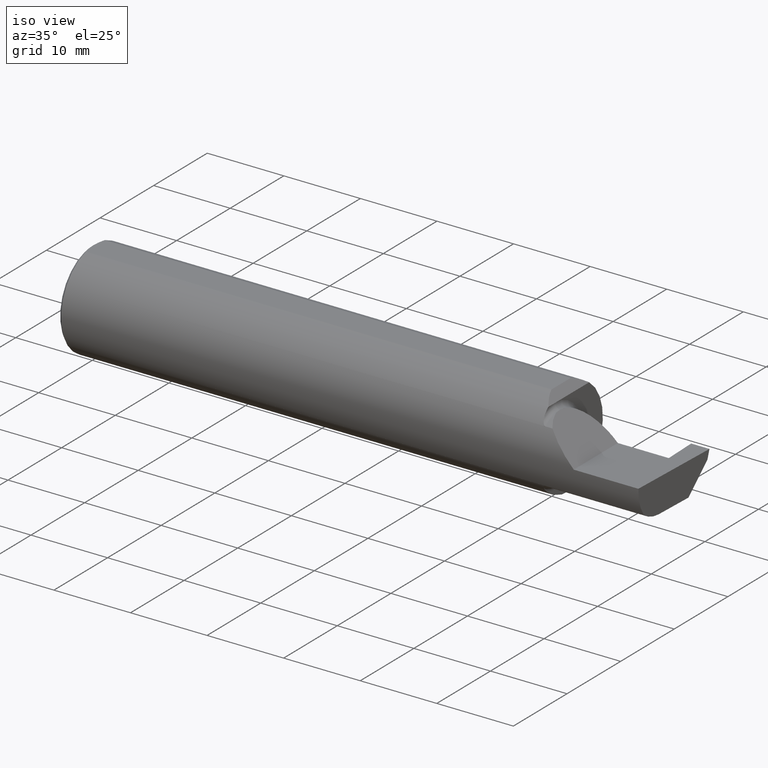
[diagram: clean part render]
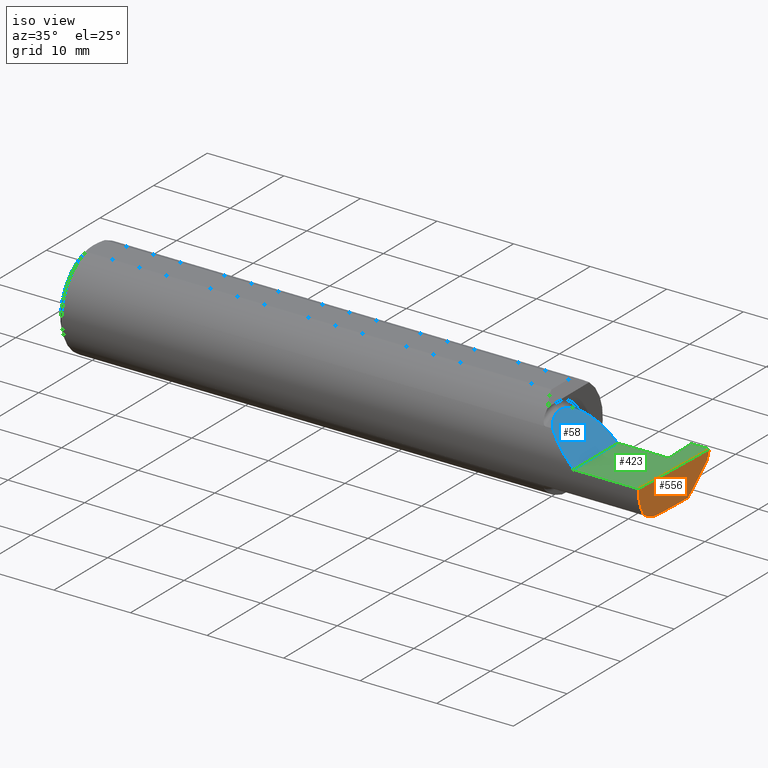
[diagram: same view with three faces highlighted in distinct colors, each labeled with its STEP entity id]
A machine part, iso view with three faces highlighted in distinct colors.
Their STEP definitions:

[orange] entity #556 — the highlighted planar face has unit normal (-0.999, 0.0349, 0.0262).
#7 = DIRECTION ( 'NONE',  ( -0.03489949670249940100, -0.9993908270190957621, 0.000000000000000000 ) ) ;
#21 = ORIENTED_EDGE ( 'NONE', *, *, #387, .F. ) ;
#24 = LINE ( 'NONE', #460, #388 ) ;
#27 = CARTESIAN_POINT ( 'NONE',  ( 2.990479469570817006, 0.1058243371481679268, -0.1749999999999999889 ) ) ;
#41 = VERTEX_POINT ( 'NONE', #406 ) ;
#55 = CARTESIAN_POINT ( 'NONE',  ( 2.981893741990786495, -0.1400387324517231025, -0.1750000000000000167 ) ) ;
#61 = CARTESIAN_POINT ( 'NONE',  ( 2.993019781838999194, 0.1785693626775286258, -0.1750000000000000444 ) ) ;
#62 =( BOUNDED_CURVE ( )  B_SPLINE_CURVE ( 3, ( #120, #313, #630, #66 ),
 .UNSPECIFIED., .F., .T. ) 
 B_SPLINE_CURVE_WITH_KNOTS ( ( 4, 4 ),
 ( 0.05713034791898994463, 0.6418805321923491958 ),
 .UNSPECIFIED. ) 
 CURVE ( )  GEOMETRIC_REPRESENTATION_ITEM ( )  RATIONAL_B_SPLINE_CURVE ( ( 1.000000000000000000, 0.9717080070095445166, 0.9717080070095445166, 1.000000000000000000 ) ) 
 REPRESENTATION_ITEM ( '' )  );
#63 = VERTEX_POINT ( 'NONE', #284 ) ;
#66 = CARTESIAN_POINT ( 'NONE',  ( 2.982632426700502215, -0.2498495826666993769, -0.0004566631977452191267 ) ) ;
#70 = VECTOR ( 'NONE', #620, 39.37007874015748854 ) ;
#120 = CARTESIAN_POINT ( 'NONE',  ( 2.980479240051444378, -0.2080850024789291652, -0.1382955322609665250 ) ) ;
#122 = EDGE_LOOP ( 'NONE', ( #814, #325, #182, #299, #582, #438, #21 ) ) ;
#123 = VECTOR ( 'NONE', #805, 39.37007874015748143 ) ;
#128 = DIRECTION ( 'NONE',  ( 0.02616100201822768243, -0.0009135623211515309658, 0.9996573249755575929 ) ) ;
#132 = LINE ( 'NONE', #61, #692 ) ;
#162 = LINE ( 'NONE', #167, #70 ) ;
#167 = CARTESIAN_POINT ( 'NONE',  ( 2.998041052908566595, 0.2295359730721147906, -0.05128836407605352060 ) ) ;
#174 = EDGE_CURVE ( 'NONE', #200, #63, #737, .T. ) ;
#176 = CARTESIAN_POINT ( 'NONE',  ( 2.982644377562602589, -0.2498499999999999610, 1.813681607540488003E-17 ) ) ;
#182 = ORIENTED_EDGE ( 'NONE', *, *, #232, .F. ) ;
#200 = VERTEX_POINT ( 'NONE', #176 ) ;
#232 = EDGE_CURVE ( 'NONE', #365, #631, #162, .T. ) ;
#241 = CARTESIAN_POINT ( 'NONE',  ( 2.982632426700502215, -0.2498495826666993769, -0.0004566631977452191267 ) ) ;
#253 = CARTESIAN_POINT ( 'NONE',  ( 2.998364291748493393, 0.2348243371481683328, -0.04599999999999999922 ) ) ;
#284 = CARTESIAN_POINT ( 'NONE',  ( 3.000000000000000444, 0.2471499999999999531, -7.549931466865102584E-16 ) ) ;
#293 = VERTEX_POINT ( 'NONE', #573 ) ;
#294 = EDGE_CURVE ( 'NONE', #41, #293, #354, .T. ) ;
#299 = ORIENTED_EDGE ( 'NONE', *, *, #455, .F. ) ;
#313 = CARTESIAN_POINT ( 'NONE',  ( 2.980602402804240381, -0.2354324170447328890, -0.09714751587400699551 ) ) ;
#321 = EDGE_CURVE ( 'NONE', #631, #293, #132, .T. ) ;
#323 = EDGE_CURVE ( 'NONE', #806, #200, #395, .T. ) ;
#325 = ORIENTED_EDGE ( 'NONE', *, *, #321, .F. ) ;
#341 = CARTESIAN_POINT ( 'NONE',  ( 2.994767799596354418, 0.2473327124642303587, -0.1999314649951115241 ) ) ;
#354 =( BOUNDED_CURVE ( )  B_SPLINE_CURVE ( 3, ( #696, #445, #55, #823 ),
 .UNSPECIFIED., .F., .T. ) 
 B_SPLINE_CURVE_WITH_KNOTS ( ( 4, 4 ),
 ( 0.2675252011803429530, 0.9270880441442505004 ),
 .UNSPECIFIED. ) 
 CURVE ( )  GEOMETRIC_REPRESENTATION_ITEM ( )  RATIONAL_B_SPLINE_CURVE ( ( 1.000000000000000000, 0.9640754331822828371, 0.9640754331822828371, 1.000000000000000000 ) ) 
 REPRESENTATION_ITEM ( '' )  );
#365 = VERTEX_POINT ( 'NONE', #253 ) ;
#387 = EDGE_CURVE ( 'NONE', #41, #806, #62, .T. ) ;
#388 = VECTOR ( 'NONE', #711, 39.37007874015748854 ) ;
#395 = LINE ( 'NONE', #644, #511 ) ;
#401 = PLANE ( 'NONE',  #784 ) ;
#406 = CARTESIAN_POINT ( 'NONE',  ( 2.980479240051444378, -0.2080850024789291652, -0.1382955322609665250 ) ) ;
#438 = ORIENTED_EDGE ( 'NONE', *, *, #323, .F. ) ;
#445 = CARTESIAN_POINT ( 'NONE',  ( 2.980931506555613453, -0.1771157075472509779, -0.1623092683844330475 ) ) ;
#455 = EDGE_CURVE ( 'NONE', #63, #365, #24, .T. ) ;
#460 = CARTESIAN_POINT ( 'NONE',  ( 2.999793790066964672, 0.2455961323656265238, -0.005799112959718751882 ) ) ;
#511 = VECTOR ( 'NONE', #128, 39.37007874015748854 ) ;
#524 = FACE_OUTER_BOUND ( 'NONE', #122, .T. ) ;
#556 = ADVANCED_FACE ( 'NONE', ( #524 ), #401, .F. ) ;
#573 = CARTESIAN_POINT ( 'NONE',  ( 2.983262242683407006, -0.1008499999999999674, -0.1749999999999999889 ) ) ;
#576 = DIRECTION ( 'NONE',  ( -0.03489949670249939406, -0.9993908270190957621, 2.445004146800611929E-16 ) ) ;
#582 = ORIENTED_EDGE ( 'NONE', *, *, #174, .F. ) ;
#611 = CARTESIAN_POINT ( 'NONE',  ( 2.982660284539054629, -0.2493944837933358694, 2.123502703737254632E-18 ) ) ;
#620 = DIRECTION ( 'NONE',  ( -0.04317993108637931121, -0.7064472710512011977, -0.7064472710511988662 ) ) ;
#630 = CARTESIAN_POINT ( 'NONE',  ( 2.981341028891338230, -0.2497592792593404665, -0.04986346618387292595 ) ) ;
#631 = VERTEX_POINT ( 'NONE', #27 ) ;
#644 = CARTESIAN_POINT ( 'NONE',  ( 2.977412177158956563, -0.2496672875357696664, -0.1999314649951114686 ) ) ;
#650 = DIRECTION ( 'NONE',  ( -0.9990483607430196145, 0.03488753751661385211, 0.02617694830785935456 ) ) ;
#692 = VECTOR ( 'NONE', #576, 39.37007874015748854 ) ;
#696 = CARTESIAN_POINT ( 'NONE',  ( 2.980479240051444378, -0.2080850024789291652, -0.1382955322609665250 ) ) ;
#711 = DIRECTION ( 'NONE',  ( -0.03432699337968036363, -0.2586665114180216052, -0.9653565628286482347 ) ) ;
#737 = LINE ( 'NONE', #611, #123 ) ;
#784 = AXIS2_PLACEMENT_3D ( 'NONE', #341, #650, #7 ) ;
#805 = DIRECTION ( 'NONE',  ( 0.03489949670249940794, 0.9993908270190957621, -4.452728370532699971E-18 ) ) ;
#806 = VERTEX_POINT ( 'NONE', #241 ) ;
#814 = ORIENTED_EDGE ( 'NONE', *, *, #294, .T. ) ;
#823 = CARTESIAN_POINT ( 'NONE',  ( 2.983262242683407006, -0.1008499999999999674, -0.1749999999999999889 ) ) ;

[blue] entity #58 — the highlighted planar face has unit normal (-0.7071, 0, -0.7071).
#9 =( BOUNDED_CURVE ( )  B_SPLINE_CURVE ( 3, ( #775, #152, #412, #704 ),
 .UNSPECIFIED., .F., .T. ) 
 B_SPLINE_CURVE_WITH_KNOTS ( ( 4, 4 ),
 ( 4.712388980384689674, 5.298966915116346321 ),
 .UNSPECIFIED. ) 
 CURVE ( )  GEOMETRIC_REPRESENTATION_ITEM ( )  RATIONAL_B_SPLINE_CURVE ( ( 1.000000000000000000, 0.9715321379117538569, 0.9715321379117538569, 1.000000000000000000 ) ) 
 REPRESENTATION_ITEM ( '' )  );
#11 = DIRECTION ( 'NONE',  ( -0.7071067811865495711, 0.000000000000000000, -0.7071067811865454633 ) ) ;
#28 = FACE_OUTER_BOUND ( 'NONE', #73, .T. ) ;
#48 = CARTESIAN_POINT ( 'NONE',  ( 2.475000000000001421, -0.1400387324517231857, 0.1750000000000000167 ) ) ;
#58 = ADVANCED_FACE ( 'NONE', ( #28 ), #209, .F. ) ;
#73 = EDGE_LOOP ( 'NONE', ( #719, #507, #787, #549 ) ) ;
#91 = CARTESIAN_POINT ( 'NONE',  ( 2.650000000000000355, 0.07414999999999997982, 4.286263797015727350E-17 ) ) ;
#95 = EDGE_CURVE ( 'NONE', #510, #491, #9, .T. ) ;
#147 = EDGE_CURVE ( 'NONE', #491, #417, #320, .T. ) ;
#152 = CARTESIAN_POINT ( 'NONE',  ( 2.600434159100403875, -0.2498499999999999055, 0.04956584089959691769 ) ) ;
#154 = CARTESIAN_POINT ( 'NONE',  ( 2.650000000000000355, -0.2498499999999999610, 4.286263797015727350E-17 ) ) ;
#194 = CARTESIAN_POINT ( 'NONE',  ( 2.650000000000000355, 0.07414999999999997982, 4.286263797015727350E-17 ) ) ;
#209 = PLANE ( 'NONE',  #788 ) ;
#275 = CARTESIAN_POINT ( 'NONE',  ( 2.650000000000000355, -0.2500000000000000555, 4.286263797015727350E-17 ) ) ;
#311 = VECTOR ( 'NONE', #509, 39.37007874015748143 ) ;
#320 =( BOUNDED_CURVE ( )  B_SPLINE_CURVE ( 3, ( #427, #356, #48, #745 ),
 .UNSPECIFIED., .F., .T. ) 
 B_SPLINE_CURVE_WITH_KNOTS ( ( 4, 4 ),
 ( 5.623622464215678463, 6.283185307179586232 ),
 .UNSPECIFIED. ) 
 CURVE ( )  GEOMETRIC_REPRESENTATION_ITEM ( )  RATIONAL_B_SPLINE_CURVE ( ( 1.000000000000000000, 0.9640754331822828371, 0.9640754331822828371, 1.000000000000000000 ) ) 
 REPRESENTATION_ITEM ( '' )  );
#342 = DIRECTION ( 'NONE',  ( -0.7071067811865454633, 0.000000000000000000, 0.7071067811865495711 ) ) ;
#356 = CARTESIAN_POINT ( 'NONE',  ( 2.487690731615568307, -0.1771157075472510889, 0.1623092683844330197 ) ) ;
#375 = EDGE_CURVE ( 'NONE', #510, #574, #437, .T. ) ;
#378 = CARTESIAN_POINT ( 'NONE',  ( 2.475000000000000977, -0.1008499999999999674, 0.1749999999999999889 ) ) ;
#412 = CARTESIAN_POINT ( 'NONE',  ( 2.552984868485333347, -0.2355204011147992438, 0.09701513151466735485 ) ) ;
#417 = VERTEX_POINT ( 'NONE', #531 ) ;
#427 = CARTESIAN_POINT ( 'NONE',  ( 2.511704467739034552, -0.2080850024789292485, 0.1382955322609664139 ) ) ;
#437 = LINE ( 'NONE', #690, #311 ) ;
#472 = CARTESIAN_POINT ( 'NONE',  ( 2.511704467739034552, -0.2080850024789292485, 0.1382955322609664139 ) ) ;
#491 = VERTEX_POINT ( 'NONE', #472 ) ;
#507 = ORIENTED_EDGE ( 'NONE', *, *, #147, .F. ) ;
#509 = DIRECTION ( 'NONE',  ( -0.000000000000000000, 1.000000000000000000, -0.000000000000000000 ) ) ;
#510 = VERTEX_POINT ( 'NONE', #154 ) ;
#531 = CARTESIAN_POINT ( 'NONE',  ( 2.475000000000000977, -0.1008499999999999674, 0.1749999999999999889 ) ) ;
#549 = ORIENTED_EDGE ( 'NONE', *, *, #375, .T. ) ;
#550 =( BOUNDED_CURVE ( )  B_SPLINE_CURVE ( 3, ( #378, #756, #765, #194 ),
 .UNSPECIFIED., .F., .T. ) 
 B_SPLINE_CURVE_WITH_KNOTS ( ( 4, 4 ),
 ( 0.000000000000000000, 1.570796326794896558 ),
 .UNSPECIFIED. ) 
 CURVE ( )  GEOMETRIC_REPRESENTATION_ITEM ( )  RATIONAL_B_SPLINE_CURVE ( ( 1.000000000000000000, 0.8047378541243649375, 0.8047378541243649375, 1.000000000000000000 ) ) 
 REPRESENTATION_ITEM ( '' )  );
#574 = VERTEX_POINT ( 'NONE', #91 ) ;
#690 = CARTESIAN_POINT ( 'NONE',  ( 2.650000000000000355, -0.2500000000000000555, 4.286263797015727350E-17 ) ) ;
#704 = CARTESIAN_POINT ( 'NONE',  ( 2.511704467739034552, -0.2080850024789292485, 0.1382955322609664139 ) ) ;
#719 = ORIENTED_EDGE ( 'NONE', *, *, #785, .F. ) ;
#745 = CARTESIAN_POINT ( 'NONE',  ( 2.475000000000000977, -0.1008499999999999674, 0.1749999999999999889 ) ) ;
#756 = CARTESIAN_POINT ( 'NONE',  ( 2.475000000000001421, 0.001662626584708371512, 0.1749999999999999889 ) ) ;
#765 = CARTESIAN_POINT ( 'NONE',  ( 2.547487373415292744, 0.07414999999999996594, 0.1025126265847083745 ) ) ;
#775 = CARTESIAN_POINT ( 'NONE',  ( 2.650000000000000355, -0.2498499999999999610, 4.286263797015727350E-17 ) ) ;
#785 = EDGE_CURVE ( 'NONE', #417, #574, #550, .T. ) ;
#787 = ORIENTED_EDGE ( 'NONE', *, *, #95, .F. ) ;
#788 = AXIS2_PLACEMENT_3D ( 'NONE', #275, #11, #342 ) ;

[green] entity #423 — the highlighted planar face has unit normal (-0, 0, -1).
#4 = ORIENTED_EDGE ( 'NONE', *, *, #174, .T. ) ;
#39 = LINE ( 'NONE', #286, #319 ) ;
#50 = CARTESIAN_POINT ( 'NONE',  ( 2.450000000000000178, 0.07414999999999997982, 6.735557395310432655E-17 ) ) ;
#52 = ORIENTED_EDGE ( 'NONE', *, *, #375, .F. ) ;
#63 = VERTEX_POINT ( 'NONE', #284 ) ;
#76 = DIRECTION ( 'NONE',  ( -1.000000000000000000, 0.000000000000000000, 1.224646799147351482E-16 ) ) ;
#87 = CARTESIAN_POINT ( 'NONE',  ( 3.000000000000000444, -0.2500000000000000555, 0.000000000000000000 ) ) ;
#91 = CARTESIAN_POINT ( 'NONE',  ( 2.650000000000000355, 0.07414999999999997982, 4.286263797015727350E-17 ) ) ;
#104 = ORIENTED_EDGE ( 'NONE', *, *, #542, .T. ) ;
#114 = DIRECTION ( 'NONE',  ( 1.000000000000000000, 0.000000000000000000, 0.000000000000000000 ) ) ;
#115 = CARTESIAN_POINT ( 'NONE',  ( 2.825000000000000178, 0.2471500000000000086, -3.306546357697639493E-19 ) ) ;
#123 = VECTOR ( 'NONE', #805, 39.37007874015748143 ) ;
#126 = LINE ( 'NONE', #50, #212 ) ;
#154 = CARTESIAN_POINT ( 'NONE',  ( 2.650000000000000355, -0.2498499999999999610, 4.286263797015727350E-17 ) ) ;
#174 = EDGE_CURVE ( 'NONE', #200, #63, #737, .T. ) ;
#176 = CARTESIAN_POINT ( 'NONE',  ( 2.982644377562602589, -0.2498499999999999610, 1.813681607540488003E-17 ) ) ;
#200 = VERTEX_POINT ( 'NONE', #176 ) ;
#212 = VECTOR ( 'NONE', #114, 39.37007874015748143 ) ;
#229 = VECTOR ( 'NONE', #633, 39.37007874015748143 ) ;
#236 = AXIS2_PLACEMENT_3D ( 'NONE', #87, #463, #76 ) ;
#284 = CARTESIAN_POINT ( 'NONE',  ( 3.000000000000000444, 0.2471499999999999531, -7.549931466865102584E-16 ) ) ;
#286 = CARTESIAN_POINT ( 'NONE',  ( 4.499279347985559139E-32, -0.2498499999999999610, 3.673940397442053459E-16 ) ) ;
#288 = EDGE_LOOP ( 'NONE', ( #330, #4, #380, #104, #657, #343, #52 ) ) ;
#295 = EDGE_CURVE ( 'NONE', #361, #63, #329, .T. ) ;
#311 = VECTOR ( 'NONE', #509, 39.37007874015748143 ) ;
#319 = VECTOR ( 'NONE', #605, 39.37007874015748143 ) ;
#329 = LINE ( 'NONE', #115, #229 ) ;
#330 = ORIENTED_EDGE ( 'NONE', *, *, #654, .F. ) ;
#332 = PLANE ( 'NONE',  #236 ) ;
#343 = ORIENTED_EDGE ( 'NONE', *, *, #757, .F. ) ;
#348 = VERTEX_POINT ( 'NONE', #442 ) ;
#361 = VERTEX_POINT ( 'NONE', #570 ) ;
#375 = EDGE_CURVE ( 'NONE', #510, #574, #437, .T. ) ;
#380 = ORIENTED_EDGE ( 'NONE', *, *, #295, .F. ) ;
#398 = CARTESIAN_POINT ( 'NONE',  ( 2.923443515640288037, -0.2526717807899120372, 9.375465352509560635E-18 ) ) ;
#415 = DIRECTION ( 'NONE',  ( 0.03487823687994805882, -0.9993915692020550745, -4.266149715957534195E-18 ) ) ;
#423 = ADVANCED_FACE ( 'NONE', ( #706 ), #332, .F. ) ;
#437 = LINE ( 'NONE', #690, #311 ) ;
#442 = CARTESIAN_POINT ( 'NONE',  ( 2.906000000000000139, 0.07414999999999999369, 6.735575451811503370E-17 ) ) ;
#463 = DIRECTION ( 'NONE',  ( -1.224646799147351482E-16, 0.000000000000000000, -1.000000000000000000 ) ) ;
#509 = DIRECTION ( 'NONE',  ( -0.000000000000000000, 1.000000000000000000, -0.000000000000000000 ) ) ;
#510 = VERTEX_POINT ( 'NONE', #154 ) ;
#542 = EDGE_CURVE ( 'NONE', #361, #824, #768, .T. ) ;
#570 = CARTESIAN_POINT ( 'NONE',  ( 2.906000000000000139, 0.2471500000000000086, -3.306546357697639493E-19 ) ) ;
#574 = VERTEX_POINT ( 'NONE', #91 ) ;
#605 = DIRECTION ( 'NONE',  ( -1.000000000000000000, -0.000000000000000000, -0.000000000000000000 ) ) ;
#611 = CARTESIAN_POINT ( 'NONE',  ( 2.982660284539054629, -0.2493944837933358694, 2.123502703737254632E-18 ) ) ;
#614 = EDGE_CURVE ( 'NONE', #824, #348, #789, .T. ) ;
#633 = DIRECTION ( 'NONE',  ( 1.000000000000000000, -0.000000000000000000, -0.000000000000000000 ) ) ;
#654 = EDGE_CURVE ( 'NONE', #200, #510, #39, .T. ) ;
#657 = ORIENTED_EDGE ( 'NONE', *, *, #614, .T. ) ;
#677 = DIRECTION ( 'NONE',  ( -1.000000000000000000, -1.871990241922592797E-16, 1.224646799147351482E-16 ) ) ;
#690 = CARTESIAN_POINT ( 'NONE',  ( 2.650000000000000355, -0.2500000000000000555, 4.286263797015727350E-17 ) ) ;
#706 = FACE_OUTER_BOUND ( 'NONE', #288, .T. ) ;
#710 = VECTOR ( 'NONE', #415, 39.37007874015748854 ) ;
#727 = VECTOR ( 'NONE', #677, 39.37007874015748143 ) ;
#737 = LINE ( 'NONE', #611, #123 ) ;
#740 = CARTESIAN_POINT ( 'NONE',  ( 3.000000000000000444, 0.07414999999999991043, 7.431225809576783727E-33 ) ) ;
#757 = EDGE_CURVE ( 'NONE', #574, #348, #126, .T. ) ;
#768 = LINE ( 'NONE', #398, #710 ) ;
#777 = CARTESIAN_POINT ( 'NONE',  ( 2.912037608447156423, 0.07414999999999995206, 5.386143063026812378E-18 ) ) ;
#789 = LINE ( 'NONE', #740, #727 ) ;
#805 = DIRECTION ( 'NONE',  ( 0.03489949670249940794, 0.9993908270190957621, -4.452728370532699971E-18 ) ) ;
#824 = VERTEX_POINT ( 'NONE', #777 ) ;